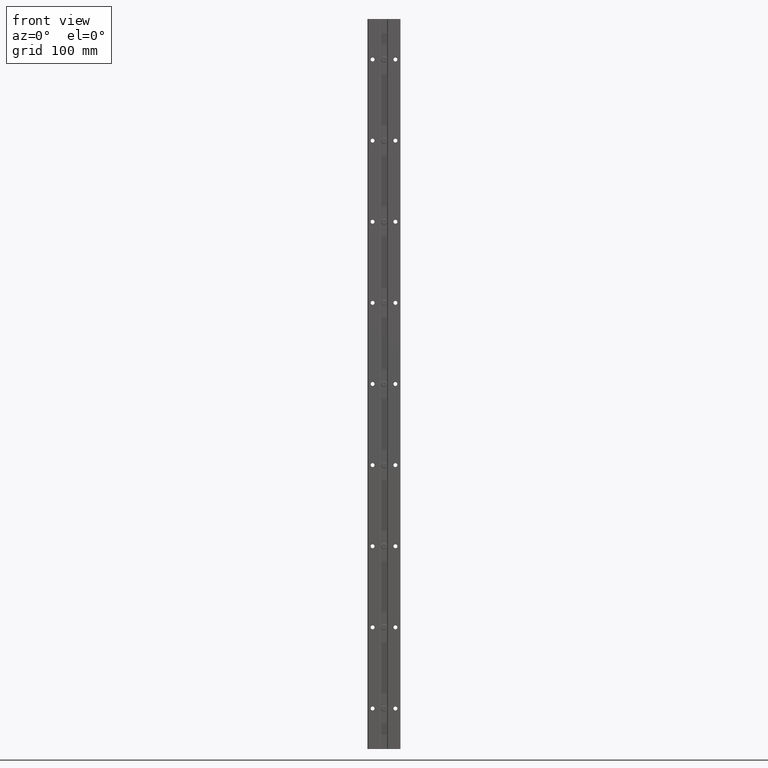
[diagram: clean part render]
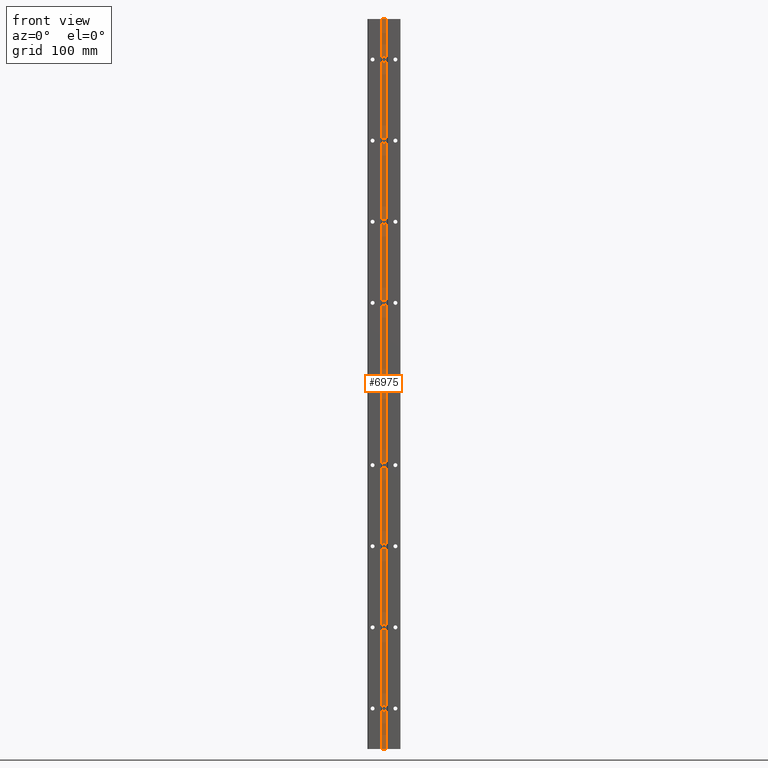
[diagram: same view with one face highlighted and labeled with its STEP entity id]
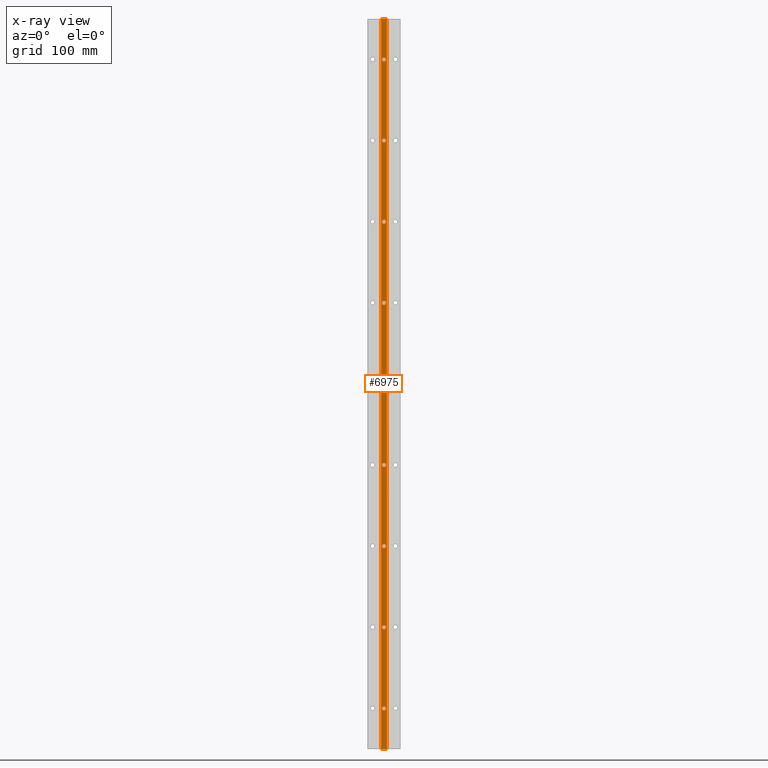
[diagram: x-ray of the same camera — body ghosted, the highlighted face saturated]
A machine part, front view. The second image highlights one B-rep face of the part: STEP entity #6975.
The next image is the same camera in x-ray: the body ghosted, the highlighted face saturated — about 0% of this face is hidden behind the body in this view.
In plain terms, the highlighted planar face has unit normal (-0, -1, 0).
Its self-contained STEP definition (entity closure, byte-faithful):
#95 = EDGE_CURVE ( 'NONE', #11976, #6349, #6665, .T. ) ;
#101 = CARTESIAN_POINT ( 'NONE',  ( 0.000000000000000000, 0.1740000000000018754, -22.00000000000000000 ) ) ;
#141 = DIRECTION ( 'NONE',  ( 1.000051497680666775E-14, 1.000000000000000000, -0.000000000000000000 ) ) ;
#165 = AXIS2_PLACEMENT_3D ( 'NONE', #8041, #6927, #7854 ) ;
#238 = EDGE_CURVE ( 'NONE', #1442, #7167, #10701, .T. ) ;
#287 = EDGE_CURVE ( 'NONE', #984, #7406, #10318, .T. ) ;
#331 = EDGE_LOOP ( 'NONE', ( #5084, #2005 ) ) ;
#440 = LINE ( 'NONE', #11489, #2458 ) ;
#522 = CIRCLE ( 'NONE', #8500, 0.09700000000000004452 ) ;
#558 = EDGE_CURVE ( 'NONE', #2914, #3140, #6945, .T. ) ;
#574 = EDGE_LOOP ( 'NONE', ( #2161, #6933, #3545, #2564 ) ) ;
#604 = CARTESIAN_POINT ( 'NONE',  ( 1.187907395173882314E-17, 0.1740000000000018754, -25.90299999999999514 ) ) ;
#617 = EDGE_CURVE ( 'NONE', #8314, #5595, #440, .T. ) ;
#641 = CARTESIAN_POINT ( 'NONE',  ( 0.000000000000000000, 0.1740000000000018754, -25.99999999999999645 ) ) ;
#682 = FACE_BOUND ( 'NONE', #1080, .T. ) ;
#713 = VERTEX_POINT ( 'NONE', #9908 ) ;
#884 = AXIS2_PLACEMENT_3D ( 'NONE', #11316, #141, #3843 ) ;
#954 = EDGE_CURVE ( 'NONE', #10122, #8269, #6977, .T. ) ;
#979 = AXIS2_PLACEMENT_3D ( 'NONE', #9329, #11448, #10473 ) ;
#984 = VERTEX_POINT ( 'NONE', #604 ) ;
#1080 = EDGE_LOOP ( 'NONE', ( #9160, #6901 ) ) ;
#1090 = CIRCLE ( 'NONE', #3799, 0.09700000000000004452 ) ;
#1142 = DIRECTION ( 'NONE',  ( 1.000051497680666775E-14, 1.000000000000000000, -0.000000000000000000 ) ) ;
#1310 = EDGE_CURVE ( 'NONE', #6797, #713, #6240, .T. ) ;
#1344 = CIRCLE ( 'NONE', #7528, 0.09700000000000004452 ) ;
#1369 = VERTEX_POINT ( 'NONE', #11383 ) ;
#1442 = VERTEX_POINT ( 'NONE', #6848 ) ;
#1448 = CARTESIAN_POINT ( 'NONE',  ( 0.000000000000000000, 0.1740000000000018754, -29.99999999999999645 ) ) ;
#1459 = EDGE_CURVE ( 'NONE', #11692, #2203, #4097, .T. ) ;
#1526 = FACE_BOUND ( 'NONE', #331, .T. ) ;
#1592 = EDGE_LOOP ( 'NONE', ( #5095, #7150 ) ) ;
#1635 = DIRECTION ( 'NONE',  ( 1.000000000000000000, -1.000051497680666775E-14, 0.000000000000000000 ) ) ;
#1656 = DIRECTION ( 'NONE',  ( 1.000000000000000000, -9.857183482293727399E-15, 0.000000000000000000 ) ) ;
#1734 = AXIS2_PLACEMENT_3D ( 'NONE', #3664, #11992, #9320 ) ;
#1758 = CARTESIAN_POINT ( 'NONE',  ( 0.000000000000000000, 0.1740000000000018754, -34.00000000000000000 ) ) ;
#1959 = DIRECTION ( 'NONE',  ( 0.000000000000000000, 0.000000000000000000, 1.000000000000000000 ) ) ;
#1989 = DIRECTION ( 'NONE',  ( 1.000000000000000000, -9.857183482293727399E-15, 0.000000000000000000 ) ) ;
#2005 = ORIENTED_EDGE ( 'NONE', *, *, #8202, .T. ) ;
#2041 = DIRECTION ( 'NONE',  ( 1.000000000000000000, -9.857183482293727399E-15, 0.000000000000000000 ) ) ;
#2161 = ORIENTED_EDGE ( 'NONE', *, *, #617, .F. ) ;
#2183 = EDGE_LOOP ( 'NONE', ( #4104, #4762 ) ) ;
#2203 = VERTEX_POINT ( 'NONE', #6459 ) ;
#2258 = DIRECTION ( 'NONE',  ( 1.000000000000000000, -9.857183482293727399E-15, 0.000000000000000000 ) ) ;
#2365 = CARTESIAN_POINT ( 'NONE',  ( 9.561960371249488483E-30, 0.1740000000000018754, -26.09699999999999775 ) ) ;
#2376 = DIRECTION ( 'NONE',  ( -1.000051497680666775E-14, -1.000000000000000000, 0.000000000000000000 ) ) ;
#2387 = EDGE_LOOP ( 'NONE', ( #8662, #6719 ) ) ;
#2458 = VECTOR ( 'NONE', #4935, 39.37007874015748143 ) ;
#2468 = ORIENTED_EDGE ( 'NONE', *, *, #9254, .T. ) ;
#2564 = ORIENTED_EDGE ( 'NONE', *, *, #10761, .F. ) ;
#2734 = CARTESIAN_POINT ( 'NONE',  ( -0.1400000000000001521, 0.1740000000000034019, -36.00000000000000000 ) ) ;
#2914 = VERTEX_POINT ( 'NONE', #6265 ) ;
#2951 = DIRECTION ( 'NONE',  ( 1.000000000000000000, -9.857183482293727399E-15, 0.000000000000000000 ) ) ;
#2952 = CARTESIAN_POINT ( 'NONE',  ( 0.000000000000000000, 0.1740000000000018754, -5.999999999999999112 ) ) ;
#2970 = CARTESIAN_POINT ( 'NONE',  ( 9.561960371249488483E-30, 0.1740000000000018754, -22.09700000000000131 ) ) ;
#3012 = EDGE_CURVE ( 'NONE', #7167, #1442, #5745, .T. ) ;
#3047 = CARTESIAN_POINT ( 'NONE',  ( 0.000000000000000000, 0.1740000000000018754, -14.00000000000000000 ) ) ;
#3140 = VERTEX_POINT ( 'NONE', #7044 ) ;
#3270 = DIRECTION ( 'NONE',  ( 1.000051497680666775E-14, 1.000000000000000000, -0.000000000000000000 ) ) ;
#3271 = CARTESIAN_POINT ( 'NONE',  ( 0.000000000000000000, 0.1740000000000018754, -2.000000000000000000 ) ) ;
#3343 = FACE_BOUND ( 'NONE', #7994, .T. ) ;
#3408 = CIRCLE ( 'NONE', #10061, 0.09700000000000004452 ) ;
#3471 = CIRCLE ( 'NONE', #1734, 0.09700000000000004452 ) ;
#3480 = CARTESIAN_POINT ( 'NONE',  ( 1.187907395173882314E-17, 0.1740000000000018754, -29.90299999999999514 ) ) ;
#3545 = ORIENTED_EDGE ( 'NONE', *, *, #1459, .F. ) ;
#3589 = AXIS2_PLACEMENT_3D ( 'NONE', #4114, #1142, #8604 ) ;
#3654 = DIRECTION ( 'NONE',  ( 1.000000000000000000, -9.857183482293727399E-15, 0.000000000000000000 ) ) ;
#3664 = CARTESIAN_POINT ( 'NONE',  ( 0.000000000000000000, 0.1740000000000018754, -18.00000000000000000 ) ) ;
#3799 = AXIS2_PLACEMENT_3D ( 'NONE', #11366, #3839, #3654 ) ;
#3839 = DIRECTION ( 'NONE',  ( 1.000051497680666775E-14, 1.000000000000000000, -0.000000000000000000 ) ) ;
#3843 = DIRECTION ( 'NONE',  ( 1.000000000000000000, -9.857183482293727399E-15, 0.000000000000000000 ) ) ;
#3955 = CARTESIAN_POINT ( 'NONE',  ( -0.1400000000000001521, 0.1740000000000034019, -37.83356500330708627 ) ) ;
#3971 = CARTESIAN_POINT ( 'NONE',  ( 9.561960371249488483E-30, 0.1740000000000018754, -34.09700000000000131 ) ) ;
#3974 = EDGE_LOOP ( 'NONE', ( #6137, #4488 ) ) ;
#4075 = AXIS2_PLACEMENT_3D ( 'NONE', #641, #7211, #8076 ) ;
#4097 = LINE ( 'NONE', #8825, #9632 ) ;
#4104 = ORIENTED_EDGE ( 'NONE', *, *, #5184, .T. ) ;
#4114 = CARTESIAN_POINT ( 'NONE',  ( 0.000000000000000000, 0.1740000000000018754, -10.00000000000000000 ) ) ;
#4231 = CARTESIAN_POINT ( 'NONE',  ( 0.000000000000000000, 0.1740000000000018754, -5.999999999999999112 ) ) ;
#4272 = VERTEX_POINT ( 'NONE', #10491 ) ;
#4366 = CARTESIAN_POINT ( 'NONE',  ( 9.561960371249488483E-30, 0.1740000000000018754, -30.09699999999999775 ) ) ;
#4488 = ORIENTED_EDGE ( 'NONE', *, *, #3012, .T. ) ;
#4724 = CARTESIAN_POINT ( 'NONE',  ( 0.000000000000000000, 0.1740000000000018754, -29.99999999999999645 ) ) ;
#4756 = AXIS2_PLACEMENT_3D ( 'NONE', #2952, #10418, #2041 ) ;
#4762 = ORIENTED_EDGE ( 'NONE', *, *, #10840, .T. ) ;
#4802 = AXIS2_PLACEMENT_3D ( 'NONE', #1758, #5479, #9227 ) ;
#4865 = AXIS2_PLACEMENT_3D ( 'NONE', #9842, #2376, #1635 ) ;
#4935 = DIRECTION ( 'NONE',  ( -1.000000000000000000, 1.000051497680666775E-14, 0.000000000000000000 ) ) ;
#5040 = AXIS2_PLACEMENT_3D ( 'NONE', #5202, #10097, #1656 ) ;
#5084 = ORIENTED_EDGE ( 'NONE', *, *, #7760, .T. ) ;
#5095 = ORIENTED_EDGE ( 'NONE', *, *, #8524, .T. ) ;
#5184 = EDGE_CURVE ( 'NONE', #8980, #4272, #3471, .T. ) ;
#5202 = CARTESIAN_POINT ( 'NONE',  ( 0.000000000000000000, 0.1740000000000018754, -25.99999999999999645 ) ) ;
#5297 = FACE_BOUND ( 'NONE', #3974, .T. ) ;
#5354 = CIRCLE ( 'NONE', #11028, 0.09700000000000004452 ) ;
#5479 = DIRECTION ( 'NONE',  ( 1.000051497680666775E-14, 1.000000000000000000, -0.000000000000000000 ) ) ;
#5525 = DIRECTION ( 'NONE',  ( 1.000000000000000000, -9.857183482293727399E-15, 0.000000000000000000 ) ) ;
#5526 = DIRECTION ( 'NONE',  ( 1.000051497680666775E-14, 1.000000000000000000, -0.000000000000000000 ) ) ;
#5595 = VERTEX_POINT ( 'NONE', #2734 ) ;
#5694 = AXIS2_PLACEMENT_3D ( 'NONE', #8534, #9511, #2951 ) ;
#5745 = CIRCLE ( 'NONE', #4756, 0.09700000000000004452 ) ;
#6101 = PLANE ( 'NONE',  #4865 ) ;
#6135 = VECTOR ( 'NONE', #1959, 39.37007874015748143 ) ;
#6137 = ORIENTED_EDGE ( 'NONE', *, *, #238, .T. ) ;
#6240 = CIRCLE ( 'NONE', #979, 0.09700000000000004452 ) ;
#6242 = CARTESIAN_POINT ( 'NONE',  ( 0.000000000000000000, 0.1740000000000018754, -14.00000000000000000 ) ) ;
#6265 = CARTESIAN_POINT ( 'NONE',  ( 1.187907395173882314E-17, 0.1740000000000018754, -13.90299999999999869 ) ) ;
#6323 = ORIENTED_EDGE ( 'NONE', *, *, #558, .T. ) ;
#6349 = VERTEX_POINT ( 'NONE', #9499 ) ;
#6459 = CARTESIAN_POINT ( 'NONE',  ( 0.1400000000000001521, 0.1740000000000004321, 0.000000000000000000 ) ) ;
#6571 = CARTESIAN_POINT ( 'NONE',  ( 1.187907395173895719E-17, 0.1740000000000018754, -5.902999999999999581 ) ) ;
#6584 = ORIENTED_EDGE ( 'NONE', *, *, #9980, .T. ) ;
#6585 = AXIS2_PLACEMENT_3D ( 'NONE', #4231, #10783, #10949 ) ;
#6606 = VERTEX_POINT ( 'NONE', #3480 ) ;
#6631 = EDGE_CURVE ( 'NONE', #7406, #984, #9951, .T. ) ;
#6665 = CIRCLE ( 'NONE', #5694, 0.09700000000000004452 ) ;
#6675 = ORIENTED_EDGE ( 'NONE', *, *, #1310, .T. ) ;
#6719 = ORIENTED_EDGE ( 'NONE', *, *, #7405, .T. ) ;
#6746 = CIRCLE ( 'NONE', #884, 0.09700000000000004452 ) ;
#6797 = VERTEX_POINT ( 'NONE', #7759 ) ;
#6848 = CARTESIAN_POINT ( 'NONE',  ( 9.561960371249597784E-30, 0.1740000000000018754, -6.096999999999998643 ) ) ;
#6901 = ORIENTED_EDGE ( 'NONE', *, *, #954, .T. ) ;
#6927 = DIRECTION ( 'NONE',  ( 1.000051497680666775E-14, 1.000000000000000000, -0.000000000000000000 ) ) ;
#6933 = ORIENTED_EDGE ( 'NONE', *, *, #10350, .T. ) ;
#6945 = CIRCLE ( 'NONE', #10077, 0.09700000000000004452 ) ;
#6950 = CIRCLE ( 'NONE', #4802, 0.09700000000000004452 ) ;
#6975 = ADVANCED_FACE ( 'NONE', ( #5297, #3343, #7946, #11783, #682, #7137, #9905, #1526, #7016, #10812 ), #6101, .T. ) ;
#6977 = CIRCLE ( 'NONE', #165, 0.09700000000000004452 ) ;
#7004 = DIRECTION ( 'NONE',  ( 1.000000000000000000, -9.857183482293727399E-15, 0.000000000000000000 ) ) ;
#7016 = FACE_BOUND ( 'NONE', #1592, .T. ) ;
#7044 = CARTESIAN_POINT ( 'NONE',  ( 9.561960371249488483E-30, 0.1740000000000018754, -14.09699999999999953 ) ) ;
#7137 = FACE_BOUND ( 'NONE', #9520, .T. ) ;
#7150 = ORIENTED_EDGE ( 'NONE', *, *, #95, .T. ) ;
#7167 = VERTEX_POINT ( 'NONE', #6571 ) ;
#7211 = DIRECTION ( 'NONE',  ( 1.000051497680666775E-14, 1.000000000000000000, -0.000000000000000000 ) ) ;
#7303 = CIRCLE ( 'NONE', #3589, 0.09700000000000004452 ) ;
#7405 = EDGE_CURVE ( 'NONE', #6606, #8508, #1344, .T. ) ;
#7406 = VERTEX_POINT ( 'NONE', #2365 ) ;
#7469 = VERTEX_POINT ( 'NONE', #3971 ) ;
#7528 = AXIS2_PLACEMENT_3D ( 'NONE', #1448, #3270, #7004 ) ;
#7542 = ORIENTED_EDGE ( 'NONE', *, *, #6631, .T. ) ;
#7623 = CARTESIAN_POINT ( 'NONE',  ( 0.1400000000000001521, 0.1740000000000004321, -36.00000000000000000 ) ) ;
#7695 = CIRCLE ( 'NONE', #11998, 0.09700000000000004452 ) ;
#7759 = CARTESIAN_POINT ( 'NONE',  ( 1.187907395173882314E-17, 0.1740000000000018754, -9.903000000000000469 ) ) ;
#7760 = EDGE_CURVE ( 'NONE', #7469, #1369, #1090, .T. ) ;
#7839 = CARTESIAN_POINT ( 'NONE',  ( 0.1400000000000001521, 0.1740000000000004321, -37.83356500330708627 ) ) ;
#7854 = DIRECTION ( 'NONE',  ( 1.000000000000000000, -9.857183482293727399E-15, 0.000000000000000000 ) ) ;
#7946 = FACE_BOUND ( 'NONE', #10465, .T. ) ;
#7994 = EDGE_LOOP ( 'NONE', ( #6584, #6675 ) ) ;
#8041 = CARTESIAN_POINT ( 'NONE',  ( 0.000000000000000000, 0.1740000000000018754, -22.00000000000000000 ) ) ;
#8076 = DIRECTION ( 'NONE',  ( 1.000000000000000000, -9.857183482293727399E-15, 0.000000000000000000 ) ) ;
#8142 = CARTESIAN_POINT ( 'NONE',  ( -0.1400000000000001521, 0.1740000000000034019, 0.000000000000000000 ) ) ;
#8177 = DIRECTION ( 'NONE',  ( 1.000000000000000000, -9.857183482293727399E-15, 0.000000000000000000 ) ) ;
#8202 = EDGE_CURVE ( 'NONE', #1369, #7469, #6950, .T. ) ;
#8269 = VERTEX_POINT ( 'NONE', #2970 ) ;
#8314 = VERTEX_POINT ( 'NONE', #7623 ) ;
#8500 = AXIS2_PLACEMENT_3D ( 'NONE', #6242, #9981, #11686 ) ;
#8508 = VERTEX_POINT ( 'NONE', #4366 ) ;
#8524 = EDGE_CURVE ( 'NONE', #6349, #11976, #3408, .T. ) ;
#8534 = CARTESIAN_POINT ( 'NONE',  ( 0.000000000000000000, 0.1740000000000018754, -2.000000000000000000 ) ) ;
#8556 = EDGE_CURVE ( 'NONE', #8508, #6606, #5354, .T. ) ;
#8604 = DIRECTION ( 'NONE',  ( 1.000000000000000000, -9.857183482293727399E-15, 0.000000000000000000 ) ) ;
#8662 = ORIENTED_EDGE ( 'NONE', *, *, #8556, .T. ) ;
#8766 = DIRECTION ( 'NONE',  ( 1.000000000000000000, -1.000051497680666775E-14, 0.000000000000000000 ) ) ;
#8767 = LINE ( 'NONE', #7839, #11023 ) ;
#8825 = CARTESIAN_POINT ( 'NONE',  ( -0.1400000000000001521, 0.1740000000000032077, 0.000000000000000000 ) ) ;
#8980 = VERTEX_POINT ( 'NONE', #11195 ) ;
#9160 = ORIENTED_EDGE ( 'NONE', *, *, #9832, .T. ) ;
#9227 = DIRECTION ( 'NONE',  ( 1.000000000000000000, -9.857183482293727399E-15, 0.000000000000000000 ) ) ;
#9254 = EDGE_CURVE ( 'NONE', #3140, #2914, #522, .T. ) ;
#9320 = DIRECTION ( 'NONE',  ( 1.000000000000000000, -9.857183482293727399E-15, 0.000000000000000000 ) ) ;
#9329 = CARTESIAN_POINT ( 'NONE',  ( 0.000000000000000000, 0.1740000000000018754, -10.00000000000000000 ) ) ;
#9398 = DIRECTION ( 'NONE',  ( 1.000051497680666775E-14, 1.000000000000000000, -0.000000000000000000 ) ) ;
#9499 = CARTESIAN_POINT ( 'NONE',  ( 9.561960371249541732E-30, 0.1740000000000018754, -2.096999999999999975 ) ) ;
#9511 = DIRECTION ( 'NONE',  ( 1.000051497680666775E-14, 1.000000000000000000, -0.000000000000000000 ) ) ;
#9520 = EDGE_LOOP ( 'NONE', ( #7542, #11512 ) ) ;
#9561 = DIRECTION ( 'NONE',  ( 0.000000000000000000, 0.000000000000000000, 1.000000000000000000 ) ) ;
#9632 = VECTOR ( 'NONE', #8766, 39.37007874015748143 ) ;
#9832 = EDGE_CURVE ( 'NONE', #8269, #10122, #7695, .T. ) ;
#9842 = CARTESIAN_POINT ( 'NONE',  ( -0.1400000000000001521, 0.1740000000000032077, -37.83356500330708627 ) ) ;
#9904 = CARTESIAN_POINT ( 'NONE',  ( 1.187907395173889094E-17, 0.1740000000000018754, -1.902999999999999803 ) ) ;
#9905 = FACE_BOUND ( 'NONE', #2387, .T. ) ;
#9908 = CARTESIAN_POINT ( 'NONE',  ( 9.561960371249488483E-30, 0.1740000000000018754, -10.09700000000000131 ) ) ;
#9938 = CARTESIAN_POINT ( 'NONE',  ( 1.187907395173882314E-17, 0.1740000000000018754, -21.90299999999999869 ) ) ;
#9951 = CIRCLE ( 'NONE', #4075, 0.09700000000000004452 ) ;
#9980 = EDGE_CURVE ( 'NONE', #713, #6797, #7303, .T. ) ;
#9981 = DIRECTION ( 'NONE',  ( 1.000051497680666775E-14, 1.000000000000000000, -0.000000000000000000 ) ) ;
#10061 = AXIS2_PLACEMENT_3D ( 'NONE', #3271, #11842, #8177 ) ;
#10077 = AXIS2_PLACEMENT_3D ( 'NONE', #3047, #10452, #2258 ) ;
#10097 = DIRECTION ( 'NONE',  ( 1.000051497680666775E-14, 1.000000000000000000, -0.000000000000000000 ) ) ;
#10122 = VERTEX_POINT ( 'NONE', #9938 ) ;
#10318 = CIRCLE ( 'NONE', #5040, 0.09700000000000004452 ) ;
#10339 = LINE ( 'NONE', #3955, #6135 ) ;
#10350 = EDGE_CURVE ( 'NONE', #8314, #2203, #8767, .T. ) ;
#10418 = DIRECTION ( 'NONE',  ( 1.000051497680666775E-14, 1.000000000000000000, -0.000000000000000000 ) ) ;
#10452 = DIRECTION ( 'NONE',  ( 1.000051497680666775E-14, 1.000000000000000000, -0.000000000000000000 ) ) ;
#10465 = EDGE_LOOP ( 'NONE', ( #2468, #6323 ) ) ;
#10473 = DIRECTION ( 'NONE',  ( 1.000000000000000000, -9.857183482293727399E-15, 0.000000000000000000 ) ) ;
#10491 = CARTESIAN_POINT ( 'NONE',  ( 1.187907395173882314E-17, 0.1740000000000018754, -17.90299999999999869 ) ) ;
#10701 = CIRCLE ( 'NONE', #6585, 0.09700000000000004452 ) ;
#10761 = EDGE_CURVE ( 'NONE', #5595, #11692, #10339, .T. ) ;
#10783 = DIRECTION ( 'NONE',  ( 1.000051497680666775E-14, 1.000000000000000000, -0.000000000000000000 ) ) ;
#10812 = FACE_OUTER_BOUND ( 'NONE', #574, .T. ) ;
#10840 = EDGE_CURVE ( 'NONE', #4272, #8980, #6746, .T. ) ;
#10949 = DIRECTION ( 'NONE',  ( 1.000000000000000000, -9.857183482293727399E-15, 0.000000000000000000 ) ) ;
#11023 = VECTOR ( 'NONE', #9561, 39.37007874015748143 ) ;
#11028 = AXIS2_PLACEMENT_3D ( 'NONE', #4724, #9398, #5525 ) ;
#11195 = CARTESIAN_POINT ( 'NONE',  ( 9.561960371249488483E-30, 0.1740000000000018754, -18.09700000000000131 ) ) ;
#11316 = CARTESIAN_POINT ( 'NONE',  ( 0.000000000000000000, 0.1740000000000018754, -18.00000000000000000 ) ) ;
#11366 = CARTESIAN_POINT ( 'NONE',  ( 0.000000000000000000, 0.1740000000000018754, -34.00000000000000000 ) ) ;
#11383 = CARTESIAN_POINT ( 'NONE',  ( 1.187907395173882314E-17, 0.1740000000000018754, -33.90299999999999869 ) ) ;
#11448 = DIRECTION ( 'NONE',  ( 1.000051497680666775E-14, 1.000000000000000000, -0.000000000000000000 ) ) ;
#11489 = CARTESIAN_POINT ( 'NONE',  ( -0.1400000000000001521, 0.1740000000000032077, -36.00000000000000000 ) ) ;
#11512 = ORIENTED_EDGE ( 'NONE', *, *, #287, .T. ) ;
#11686 = DIRECTION ( 'NONE',  ( 1.000000000000000000, -9.857183482293727399E-15, 0.000000000000000000 ) ) ;
#11692 = VERTEX_POINT ( 'NONE', #8142 ) ;
#11783 = FACE_BOUND ( 'NONE', #2183, .T. ) ;
#11842 = DIRECTION ( 'NONE',  ( 1.000051497680666775E-14, 1.000000000000000000, -0.000000000000000000 ) ) ;
#11976 = VERTEX_POINT ( 'NONE', #9904 ) ;
#11992 = DIRECTION ( 'NONE',  ( 1.000051497680666775E-14, 1.000000000000000000, -0.000000000000000000 ) ) ;
#11998 = AXIS2_PLACEMENT_3D ( 'NONE', #101, #5526, #1989 ) ;